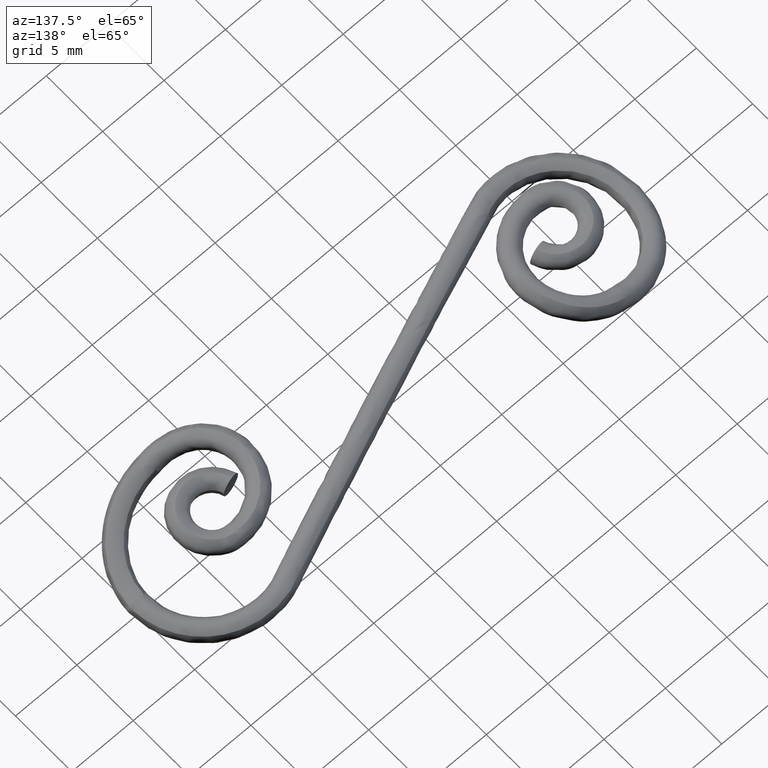
[diagram: clean part render]
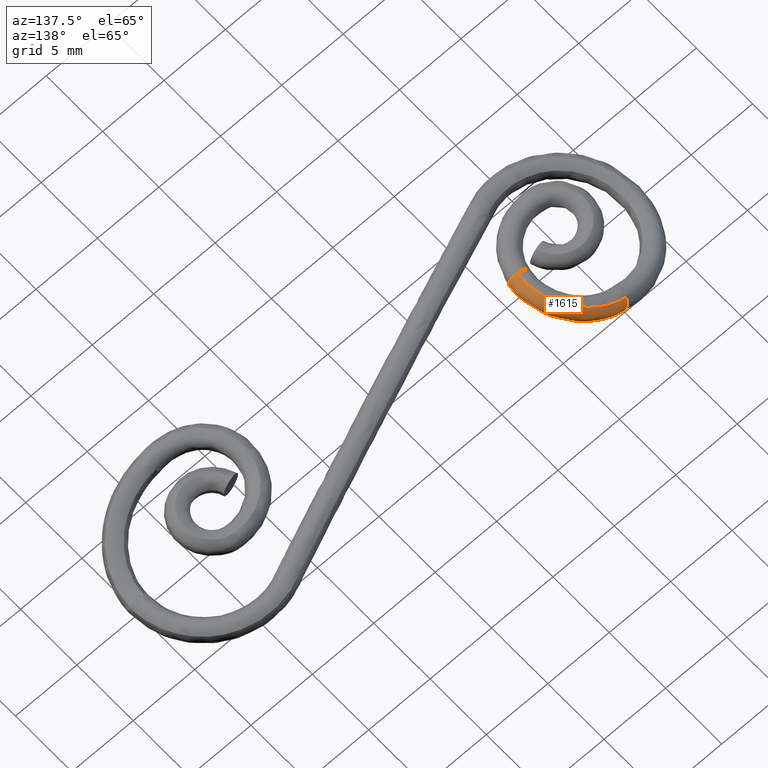
[diagram: same view with one face highlighted and labeled with its STEP entity id]
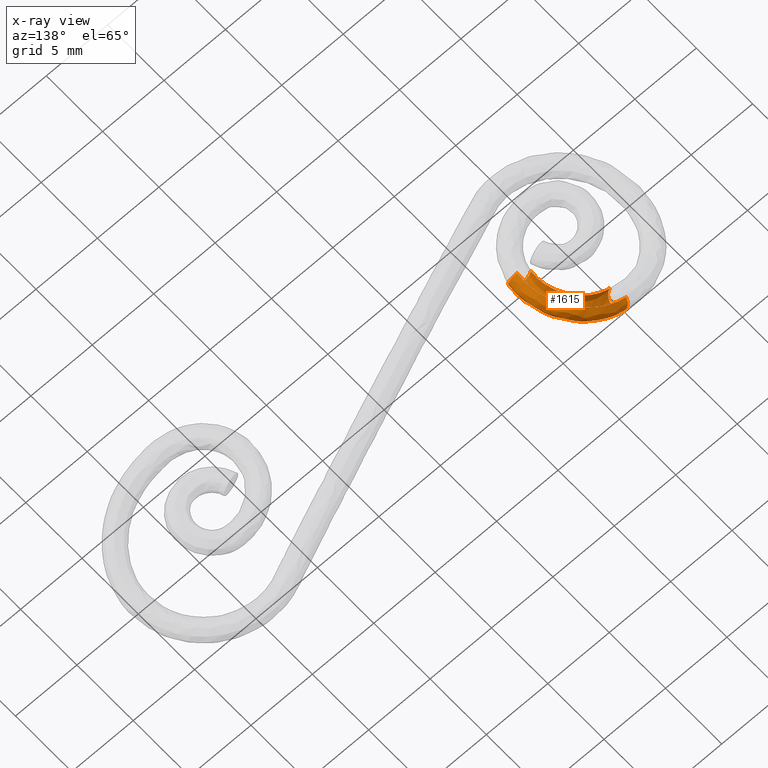
[diagram: x-ray of the same camera — body ghosted, the highlighted face saturated]
A machine part, auxiliary view. The second image highlights one B-rep face of the part: STEP entity #1615.
The next image is the same camera in x-ray: the body ghosted, the highlighted face saturated — about 0% of this face is hidden behind the body in this view.
In plain terms, the highlighted face is a freeform B-spline surface patch.
Its self-contained STEP definition (entity closure, byte-faithful):
#848=CARTESIAN_POINT('',(-10.858889443462781,1.184524392507307,3.281621978987990));
#849=VERTEX_POINT('',#848);
#875=CARTESIAN_POINT('',(-9.405141997174503,0.953093960120456,2.842855684865125));
#876=VERTEX_POINT('',#875);
#877=CARTESIAN_POINT('',(-10.858889443462781,1.184524392507307,3.281621978987990));
#878=CARTESIAN_POINT('',(-10.858918073047910,1.184772808851079,3.271835612351334));
#879=CARTESIAN_POINT('',(-10.858764042023109,1.184990671236889,3.262053713068529));
#880=CARTESIAN_POINT('',(-10.857513822519790,1.185675589073727,3.226170106561495));
#881=CARTESIAN_POINT('',(-10.853089587637079,1.186231982811212,3.174195931299745));
#882=CARTESIAN_POINT('',(-10.843666298514540,1.185939235034702,3.122857200595848));
#883=CARTESIAN_POINT('',(-10.831753643139830,1.185223633576179,3.071834900561029));
#884=CARTESIAN_POINT('',(-10.824502925524200,1.184649475465803,3.046347195926379));
#885=CARTESIAN_POINT('',(-10.799328305052690,1.182314111468509,2.971585419575938));
#886=CARTESIAN_POINT('',(-10.778093691975570,1.179959633035461,2.923973023384732));
#887=CARTESIAN_POINT('',(-10.726838460808770,1.173676456196229,2.833147200509522));
#888=CARTESIAN_POINT('',(-10.696410138463300,1.169689220136361,2.789555053180416));
#889=CARTESIAN_POINT('',(-10.628584842980590,1.160348274327945,2.710592374245749));
#890=CARTESIAN_POINT('',(-10.591034734910391,1.154976318818337,2.674929362307612));
#891=CARTESIAN_POINT('',(-10.529362977773630,1.145887293184716,2.627047291330919));
#892=CARTESIAN_POINT('',(-10.507789872220251,1.142666736953802,2.611951082426464));
#893=CARTESIAN_POINT('',(-10.463639866736861,1.135998088881371,2.584175758835971));
#894=CARTESIAN_POINT('',(-10.441037464261109,1.132546746064896,2.571456463185071));
#895=CARTESIAN_POINT('',(-10.371699952623770,1.121853173091714,2.536688710822137));
#896=CARTESIAN_POINT('',(-10.323404701414301,1.114267853106744,2.517972995699216));
#897=CARTESIAN_POINT('',(-10.222776317618139,1.098188833166522,2.489986580795952));
#898=CARTESIAN_POINT('',(-10.171986586075130,1.089941907602013,2.481138685405341));
#899=CARTESIAN_POINT('',(-10.095087458220769,1.077259865944818,2.475598017909739));
#900=CARTESIAN_POINT('',(-10.069333624464649,1.072979833200762,2.475058082340004));
#901=CARTESIAN_POINT('',(-10.017575749686300,1.064310642650301,2.476685427129468));
#902=CARTESIAN_POINT('',(-9.991471628870185,1.059904446284667,2.478866921800502));
#903=CARTESIAN_POINT('',(-9.914493763793050,1.046813011708527,2.489239595542533));
#904=CARTESIAN_POINT('',(-9.864437282978424,1.038170488784796,2.501187069413605));
#905=CARTESIAN_POINT('',(-9.766745061045205,1.021048692470840,2.534734255309589));
#906=CARTESIAN_POINT('',(-9.718914017381300,1.012531087934882,2.556565790014882));
#907=CARTESIAN_POINT('',(-9.629671181243383,0.996364241351828,2.608335621920891));
#908=CARTESIAN_POINT('',(-9.587739778480744,0.988625383143036,2.638394024373916));
#909=CARTESIAN_POINT('',(-9.529163070391961,0.977570519324578,2.690184612694143));
#910=CARTESIAN_POINT('',(-9.510397537795193,0.973984004212741,2.708583797297709));
#911=CARTESIAN_POINT('',(-9.475222154611570,0.967167916581680,2.746820226762414));
#912=CARTESIAN_POINT('',(-9.444395402422069,0.961103961626174,2.783966437172589));
#913=CARTESIAN_POINT('',(-9.417063826794326,0.955555567795398,2.823810824007240));
#914=CARTESIAN_POINT('',(-9.405141997174503,0.953093960120456,2.842855684865125));
#915=B_SPLINE_CURVE_WITH_KNOTS('',3,(#877,#878,#879,#880,#881,#882,#883,#884,#885,#886,#887,#888,#889,#890,#891,#892,#893,#894,#895,#896,#897,#898,#899,#900,#901,#902,#903,#904,#905,#906,#907,#908,#909,#910,#911,#912,#913,#914),.UNSPECIFIED.,.F.,.U.,(4,2,1,2,2,2,2,2,2,2,2,2,2,2,2,2,2,2,1,4),(0.019622084922274,0.031250000000001,0.062500000000001,0.093750000000002,0.125000000000002,0.187500000000003,0.250000000000004,0.312500000000005,0.343750000000005,0.375000000000006,0.437500000000007,0.500000000000008,0.531250000000007,0.562500000000007,0.625000000000006,0.687500000000005,0.750000000000004,0.781250000000003,0.812500000000003,0.839499367751863),.UNSPECIFIED.);
#916=EDGE_CURVE('',#849,#876,#915,.T.);
#1212=CARTESIAN_POINT('',(-9.282292752054241,0.923164538791007,3.222456528843415));
#1213=VERTEX_POINT('',#1212);
#1214=CARTESIAN_POINT('',(-9.405141997174503,0.953093960120456,2.842855684865125));
#1215=CARTESIAN_POINT('',(-9.403265025987395,0.952706408711693,2.845853960046980));
#1216=CARTESIAN_POINT('',(-9.401406629886514,0.952321595251385,2.848866566014030));
#1217=CARTESIAN_POINT('',(-9.386040027962235,0.949130473291509,2.874146614514067));
#1218=CARTESIAN_POINT('',(-9.373455382284908,0.946456165279197,2.897297165407272));
#1219=CARTESIAN_POINT('',(-9.339270316506088,0.938994596294681,2.968101340764402));
#1220=CARTESIAN_POINT('',(-9.321210720394490,0.934769015625621,3.016906544731462));
#1221=CARTESIAN_POINT('',(-9.301108129679369,0.929536608542071,3.092481102543432));
#1222=CARTESIAN_POINT('',(-9.295582465190423,0.927978498486647,3.118070715789596));
#1223=CARTESIAN_POINT('',(-9.286999859336216,0.925253061926363,3.170086212518231));
#1224=CARTESIAN_POINT('',(-9.283976372625149,0.924092581355617,3.196466555853814));
#1225=CARTESIAN_POINT('',(-9.282292752054241,0.923164538791007,3.222456528843415));
#1226=B_SPLINE_CURVE_WITH_KNOTS('',3,(#1214,#1215,#1216,#1217,#1218,#1219,#1220,#1221,#1222,#1223,#1224,#1225),.UNSPECIFIED.,.F.,.U.,(4,2,2,2,2,4),(0.839499367751863,0.843750000000002,0.875000000000002,0.937500000000001,0.968750000000000,1.0),.UNSPECIFIED.);
#1227=EDGE_CURVE('',#876,#1213,#1226,.T.);
#1229=CARTESIAN_POINT('',(-9.919931967133802,1.009478964911880,4.061339350565421));
#1230=VERTEX_POINT('',#1229);
#1231=CARTESIAN_POINT('',(-9.919931967133802,1.009478964911880,4.061339350565421));
#1232=CARTESIAN_POINT('',(-9.901916370861974,1.006562887507865,4.057654818522732));
#1233=CARTESIAN_POINT('',(-9.883961502024800,1.003671551416158,4.053324254563380));
#1234=CARTESIAN_POINT('',(-9.816277910681853,0.992829357885963,4.034480966274014));
#1235=CARTESIAN_POINT('',(-9.768130321881920,0.985234776740050,4.015865122920581));
#1236=CARTESIAN_POINT('',(-9.675481489139980,0.970864239742364,3.969435825912510));
#1237=CARTESIAN_POINT('',(-9.630756992697895,0.964057845599781,3.941328665998204));
#1238=CARTESIAN_POINT('',(-9.548891766257194,0.951881435243132,3.877809685431281));
#1239=CARTESIAN_POINT('',(-9.511289239580789,0.946439247270018,3.842190218084125));
#1240=CARTESIAN_POINT('',(-9.460137537314589,0.939299875488233,3.782672376479830));
#1241=CARTESIAN_POINT('',(-9.443931059653592,0.937086777896480,3.761767183106053));
#1242=CARTESIAN_POINT('',(-9.413955162867394,0.933094203836097,3.718924197459622));
#1243=CARTESIAN_POINT('',(-9.400083446704933,0.931300184085573,3.696878430171789));
#1244=CARTESIAN_POINT('',(-9.361695793661394,0.926504658658856,3.628935974629136));
#1245=CARTESIAN_POINT('',(-9.340309932998569,0.924076958974850,3.581086509793861));
#1246=CARTESIAN_POINT('',(-9.306639600361899,0.920863190187585,3.481140415174183));
#1247=CARTESIAN_POINT('',(-9.294778739143462,0.920115123441604,3.430403014720727));
#1248=CARTESIAN_POINT('',(-9.284345294193699,0.920266654543591,3.353166301428008));
#1249=CARTESIAN_POINT('',(-9.282104882333165,0.920531320135094,3.327230590023360));
#1250=CARTESIAN_POINT('',(-9.280218974142773,0.921509832305277,3.274960430420375));
#1251=CARTESIAN_POINT('',(-9.280609426323299,0.922235060929190,3.248445642085005));
#1252=CARTESIAN_POINT('',(-9.282292752054241,0.923164538791007,3.222456528843415));
#1253=B_SPLINE_CURVE_WITH_KNOTS('',3,(#1231,#1232,#1233,#1234,#1235,#1236,#1237,#1238,#1239,#1240,#1241,#1242,#1243,#1244,#1245,#1246,#1247,#1248,#1249,#1250,#1251,#1252),.UNSPECIFIED.,.F.,.U.,(4,2,2,2,2,2,2,2,2,2,4),(0.540409852304404,0.562500000000001,0.625000000000000,0.687500000000000,0.750000000000000,0.781250000000000,0.812500000000000,0.875000000000000,0.937500000000000,0.968750000000000,1.0),.UNSPECIFIED.);
#1254=EDGE_CURVE('',#1230,#1213,#1253,.T.);
#1274=CARTESIAN_POINT('',(-9.958544793080064,0.890738641468151,4.055998946626978));
#1275=CARTESIAN_POINT('',(-9.797846451054427,0.865273129946783,4.026918534210102));
#1276=CARTESIAN_POINT('',(-9.645209346525952,0.845001835316450,3.947683299234571));
#1277=CARTESIAN_POINT('',(-9.382483682891108,0.819941695824136,3.681742005270602));
#1278=CARTESIAN_POINT('',(-9.210181675401207,0.821983995771980,3.263843962456360));
#1279=CARTESIAN_POINT('',(-9.377774513303963,0.882370447737130,2.848395331509713));
#1280=CARTESIAN_POINT('',(-9.667768664178103,0.954542346547201,2.555394324632442));
#1281=CARTESIAN_POINT('',(-10.078554057152459,1.038113315608873,2.386278903734240));
#1282=CARTESIAN_POINT('',(-10.704022713005520,1.125657786055711,2.651958730054786));
#1283=CARTESIAN_POINT('',(-10.875890770902760,1.122827303585220,3.079258408714401));
#1284=CARTESIAN_POINT('',(-10.872157618621371,1.105898491180565,3.293868189663840));
#1285=CARTESIAN_POINT('',(-9.954041819160182,0.917166033979001,4.057983402037926));
#1286=CARTESIAN_POINT('',(-9.793377597177207,0.891500206420638,4.028887952957614));
#1287=CARTESIAN_POINT('',(-9.640767653108080,0.871069455262528,3.949640748398986));
#1288=CARTESIAN_POINT('',(-9.378075565970331,0.845812192339931,3.683684657311487));
#1289=CARTESIAN_POINT('',(-9.205770821378648,0.847870564238889,3.265787820734844));
#1290=CARTESIAN_POINT('',(-9.373282749481058,0.908732034209862,2.850374846643855));
#1291=CARTESIAN_POINT('',(-9.663180199974976,0.981471655568924,2.557416455512577));
#1292=CARTESIAN_POINT('',(-10.073853619680300,1.065700012388171,2.388350381104844));
#1293=CARTESIAN_POINT('',(-10.699204979093670,1.153933119792036,2.654081899831019));
#1294=CARTESIAN_POINT('',(-10.871076830159080,1.151080365224416,3.081379906845802));
#1295=CARTESIAN_POINT('',(-10.867366360399050,1.134018384081128,3.295979691634252));
#1296=CARTESIAN_POINT('',(-9.949470029864942,0.944001116246513,4.059998184305393));
#1297=CARTESIAN_POINT('',(-9.788818162483876,0.918262847086099,4.030897290566273));
#1298=CARTESIAN_POINT('',(-9.636218052912492,0.897774430599237,3.951645751955830));
#1299=CARTESIAN_POINT('',(-9.373538123168634,0.872445880557665,3.685684303118874));
#1300=CARTESIAN_POINT('',(-9.201232386795351,0.874510064519644,3.267787903619240));
#1301=CARTESIAN_POINT('',(-9.368715017283719,0.935543318203293,2.852387840952952));
#1302=CARTESIAN_POINT('',(-9.658577452698651,1.008488248663739,2.559444880926584));
#1303=CARTESIAN_POINT('',(-10.069210327315050,1.092954340839216,2.390396674692756));
#1304=CARTESIAN_POINT('',(-10.694519214875870,1.181436484597675,2.656146910715354));
#1305=CARTESIAN_POINT('',(-10.866392440133421,1.178575675771053,3.083444312125241));
#1306=CARTESIAN_POINT('',(-10.862690183926610,1.161465536022627,3.298040477210261));
#1307=CARTESIAN_POINT('',(-9.919178240818987,1.121865904615709,4.073347740787163));
#1308=CARTESIAN_POINT('',(-9.757965937624951,1.099419484396911,4.044493830464176));
#1309=CARTESIAN_POINT('',(-9.604919704666465,1.081551460887705,3.965438897915648));
#1310=CARTESIAN_POINT('',(-9.341688260264130,1.059462293412527,3.699720500952373));
#1311=CARTESIAN_POINT('',(-9.169427469867951,1.061262360097020,3.281804293812443));
#1312=CARTESIAN_POINT('',(-9.338239063399447,1.114489508442104,2.865818558666412));
#1313=CARTESIAN_POINT('',(-9.629689831788840,1.178104894754416,2.572175622130826));
#1314=CARTESIAN_POINT('',(-10.042161906074821,1.251767950210463,2.402316882724698));
#1315=CARTESIAN_POINT('',(-10.669397440924589,1.328933533006046,2.667218047510081));
#1316=CARTESIAN_POINT('',(-10.841208374173091,1.326438730234483,3.094542900936402));
#1317=CARTESIAN_POINT('',(-10.837133554880671,1.311516990632552,3.309303254143396));
#1318=CARTESIAN_POINT('',(-9.899768131531570,1.289793285180985,4.081901753554680));
#1319=CARTESIAN_POINT('',(-9.737458256677281,1.275693647361522,4.053531541795978));
#1320=CARTESIAN_POINT('',(-9.583538322923149,1.264469868884157,3.974861648180017));
#1321=CARTESIAN_POINT('',(-9.319226772014517,1.250594451814870,3.709619252907771));
#1322=CARTESIAN_POINT('',(-9.147053993870280,1.251724827372932,3.291664258870085));
#1323=CARTESIAN_POINT('',(-9.318468249434345,1.285158888231787,2.874531533569135));
#1324=CARTESIAN_POINT('',(-9.613029639360056,1.325118368807235,2.579517749711693));
#1325=CARTESIAN_POINT('',(-10.029103641783060,1.371389343497596,2.408071644731394));
#1326=CARTESIAN_POINT('',(-10.660112375747120,1.419860755791579,2.671309965020702));
#1327=CARTESIAN_POINT('',(-10.831801326108440,1.418293992354317,3.098688576164565));
#1328=CARTESIAN_POINT('',(-10.826996876024550,1.408921139113488,3.313770476819555));
#1329=CARTESIAN_POINT('',(-9.863349514398166,1.927653253992335,4.097951396105397));
#1330=CARTESIAN_POINT('',(-9.699742845947435,1.936000373581781,4.070152679788424));
#1331=CARTESIAN_POINT('',(-9.544790614809505,1.942644770181289,3.991937718438622));
#1332=CARTESIAN_POINT('',(-9.279202864117350,1.950858357989685,3.727257742938702));
#1333=CARTESIAN_POINT('',(-9.107134000036117,1.950187764349543,3.309256954093037));
#1334=CARTESIAN_POINT('',(-9.281623246217746,1.930392868111078,2.890769083975296));
#1335=CARTESIAN_POINT('',(-9.579859805825553,1.906735224629289,2.594135657078843));
#1336=CARTESIAN_POINT('',(-10.000189481728791,1.879341486156578,2.420814081706392));
#1337=CARTESIAN_POINT('',(-10.635656322991171,1.850646501696746,2.682087719252599));
#1338=CARTESIAN_POINT('',(-10.807201224391751,1.851575475442746,3.109529812607795));
#1339=CARTESIAN_POINT('',(-10.801534747975790,1.857125073333022,3.324991607272518));
#1340=CARTESIAN_POINT('',(-9.917908471864166,2.410387062166579,4.073907326500891));
#1341=CARTESIAN_POINT('',(-9.756265526626986,2.435780116478366,4.045243199629519));
#1342=CARTESIAN_POINT('',(-9.602876454654977,2.455993502218179,3.966339355838623));
#1343=CARTESIAN_POINT('',(-9.339221073973523,2.480981361196629,3.700807787104216));
#1344=CARTESIAN_POINT('',(-9.166994555952403,2.478943142751489,3.282876476168294));
#1345=CARTESIAN_POINT('',(-9.336827027448033,2.418726515217615,2.866440841281071));
#1346=CARTESIAN_POINT('',(-9.629498043687674,2.346758422606405,2.572260142926048));
#1347=CARTESIAN_POINT('',(-10.043383202955789,2.263424149884841,2.401778658598219));
#1348=CARTESIAN_POINT('',(-10.672099288709569,2.176129452347935,2.666027346309206));
#1349=CARTESIAN_POINT('',(-10.843862627275190,2.178953653091136,3.093373174657085));
#1350=CARTESIAN_POINT('',(-10.839501675577530,2.195835260612972,3.308259626085031));
#1351=CARTESIAN_POINT('',(-10.225517087021331,3.481196709017963,3.938344564719892));
#1352=CARTESIAN_POINT('',(-10.074496327108120,3.543558283702765,3.904999253032009));
#1353=CARTESIAN_POINT('',(-9.929562749629739,3.593199539519464,3.822369082574031));
#1354=CARTESIAN_POINT('',(-9.676360140323684,3.654566771200442,3.552230989555397));
#1355=CARTESIAN_POINT('',(-9.503281161788452,3.649562548807379,3.134675356984134));
#1356=CARTESIAN_POINT('',(-9.647924546634609,3.501680988254537,2.729340523520844));
#1357=CARTESIAN_POINT('',(-9.910490674719737,3.324939225160773,2.448427014639737));
#1358=CARTESIAN_POINT('',(-10.289516312480821,3.120283456262293,2.293308081220196));
#1359=CARTESIAN_POINT('',(-10.881716037279951,2.905900099754577,2.573649487069404));
#1360=CARTESIAN_POINT('',(-11.054660617506119,2.912834545238183,3.000474743581232));
#1361=CARTESIAN_POINT('',(-11.057361339815980,2.954292523314023,3.212249123421550));
#1362=CARTESIAN_POINT('',(-10.538270529892360,4.047601322788456,3.800514483303137));
#1363=CARTESIAN_POINT('',(-10.397854857393989,4.128743805673482,3.762495521827742));
#1364=CARTESIAN_POINT('',(-10.261363178212230,4.193335140637019,3.676145016530368));
#1365=CARTESIAN_POINT('',(-10.018596574800680,4.273183999658109,3.401407787755047));
#1366=CARTESIAN_POINT('',(-9.844666613680863,4.266673011357975,2.984227182227214));
#1367=CARTESIAN_POINT('',(-9.964161579195221,4.074255572815830,2.589975228146624));
#1368=CARTESIAN_POINT('',(-10.196671371694251,3.844286267244006,2.322307511679626));
#1369=CARTESIAN_POINT('',(-10.540893665861811,3.577996248049250,2.182526371624835));
#1370=CARTESIAN_POINT('',(-11.096635766249070,3.299048745007502,2.478934610488673));
#1371=CARTESIAN_POINT('',(-11.270759578393751,3.308071257683179,2.905240180853848));
#1372=CARTESIAN_POINT('',(-11.280510549066729,3.362014610009269,3.113907524375402));
#1373=CARTESIAN_POINT('',(-11.375364773586920,4.988672372731909,3.431608015948235));
#1374=CARTESIAN_POINT('',(-11.261342261929469,5.099486676950127,3.381957618942845));
#1375=CARTESIAN_POINT('',(-11.145860171051220,5.187697543033616,3.286348212321376));
#1376=CARTESIAN_POINT('',(-10.929065987082421,5.296745429643128,3.000164968264228));
#1377=CARTESIAN_POINT('',(-10.753018262738159,5.287853979917666,2.583917658545825));
#1378=CARTESIAN_POINT('',(-10.809925808382211,5.025074706546598,2.217247908188639));
#1379=CARTESIAN_POINT('',(-10.967633694507249,4.711011650727668,1.982545305554075));
#1380=CARTESIAN_POINT('',(-11.225240051964770,4.347346166551209,1.880935708869800));
#1381=CARTESIAN_POINT('',(-11.690249061350610,3.966394207845490,2.217329916249500));
#1382=CARTESIAN_POINT('',(-11.867307557054710,3.978715574005619,2.642342174956621));
#1383=CARTESIAN_POINT('',(-11.894604611389999,4.052384441622471,2.843276979652748));
#1384=CARTESIAN_POINT('',(-11.896543635785720,5.359914362235056,3.201925092714810));
#1385=CARTESIAN_POINT('',(-11.798144568487320,5.481614755174081,3.145389461806693));
#1386=CARTESIAN_POINT('',(-11.695099118794090,5.578491232726047,3.044299241764312));
#1387=CARTESIAN_POINT('',(-11.493679343116380,5.698251771413973,2.751340513712820));
#1388=CARTESIAN_POINT('',(-11.316378046769721,5.688487012097807,2.335645651728861));
#1389=CARTESIAN_POINT('',(-11.336236983783399,5.399893220898683,1.985303180448507));
#1390=CARTESIAN_POINT('',(-11.449665879964700,5.054977629314393,1.770114277592886));
#1391=CARTESIAN_POINT('',(-11.655999916210350,4.655586762257552,1.691100333708857));
#1392=CARTESIAN_POINT('',(-12.067299413010510,4.237211080010031,2.051164261314396));
#1393=CARTESIAN_POINT('',(-12.246095056150949,4.250742697238851,2.475410961151289));
#1394=CARTESIAN_POINT('',(-12.283778501528159,4.331648499299305,2.671768495298770));
#1395=CARTESIAN_POINT('',(-12.902812362802200,5.781020016604730,2.758463625754682));
#1396=CARTESIAN_POINT('',(-12.833242534579240,5.914783378672842,2.689222982449310));
#1397=CARTESIAN_POINT('',(-12.753145865667999,6.021262306002551,2.578019261194555));
#1398=CARTESIAN_POINT('',(-12.580095820452280,6.152893672494963,2.272558025661106));
#1399=CARTESIAN_POINT('',(-12.400481410902589,6.142161271509910,1.857882549997972));
#1400=CARTESIAN_POINT('',(-12.351976270966240,5.824962282185658,1.537668048550368));
#1401=CARTESIAN_POINT('',(-12.383699180664980,5.445858800385194,1.358486879665072));
#1402=CARTESIAN_POINT('',(-12.495422738474470,5.006880377880369,1.321167664465321));
#1403=CARTESIAN_POINT('',(-12.807614469294389,4.547035112034960,1.724908270188770));
#1404=CARTESIAN_POINT('',(-12.989615544484231,4.561907736731989,2.147742339818288));
#1405=CARTESIAN_POINT('',(-13.046464503967600,4.650832803811365,2.335653654013096));
#1406=CARTESIAN_POINT('',(-13.363213261369051,5.888146251753180,2.555565480967921));
#1407=CARTESIAN_POINT('',(-13.306484741021279,6.024853127764312,2.480665688098286));
#1408=CARTESIAN_POINT('',(-13.236610069754541,6.133675177226401,2.364957144275829));
#1409=CARTESIAN_POINT('',(-13.076196663093970,6.268203195646513,2.053926956711559));
#1410=CARTESIAN_POINT('',(-12.895551945735180,6.257234718563397,1.639705536510397));
#1411=CARTESIAN_POINT('',(-12.816595648683590,5.933055753080673,1.332910824869110));
#1412=CARTESIAN_POINT('',(-12.811924557146330,5.545610038581161,1.169768450337015));
#1413=CARTESIAN_POINT('',(-12.881506106928329,5.096971787476505,1.151021169451716));
#1414=CARTESIAN_POINT('',(-13.149552604027519,4.627007413418812,1.574216528740507));
#1415=CARTESIAN_POINT('',(-13.332981449164730,4.642207219104247,1.996421381802352));
#1416=CARTESIAN_POINT('',(-13.398367229167500,4.733089063693010,2.180570529043689));
#1417=CARTESIAN_POINT('',(-13.984157496833570,5.925410231738488,2.281916072845871));
#1418=CARTESIAN_POINT('',(-13.944640030715110,6.063160027199936,2.199431388235519));
#1419=CARTESIAN_POINT('',(-13.888465785178219,6.172812282447413,2.077685082601508));
#1420=CARTESIAN_POINT('',(-13.744989126421951,6.308366666412229,1.759190889777416));
#1421=CARTESIAN_POINT('',(-13.562963516534751,6.297314633185609,1.345578027320568));
#1422=CARTESIAN_POINT('',(-13.443193910519600,5.970662686870479,1.056769693848952));
#1423=CARTESIAN_POINT('',(-13.389744381401201,5.580261306143263,0.915123920478137));
#1424=CARTESIAN_POINT('',(-13.402843503096889,5.128200526778832,0.921268380480975));
#1425=CARTESIAN_POINT('',(-13.611722654887121,4.654650806301566,1.370538720579744));
#1426=CARTESIAN_POINT('',(-13.797065105977969,4.669966445435194,1.791900249705829));
#1427=CARTESIAN_POINT('',(-13.873892676901241,4.761541548761905,1.971007012890143));
#1428=CARTESIAN_POINT('',(-14.146984881396650,5.925769756517719,2.210158232339668));
#1429=CARTESIAN_POINT('',(-14.113946110107150,6.063425463284356,2.124818394393327));
#1430=CARTESIAN_POINT('',(-14.062929066602660,6.173002827619296,2.000799315773990));
#1431=CARTESIAN_POINT('',(-13.925827848142379,6.308464647931199,1.679495473767383));
#1432=CARTESIAN_POINT('',(-13.743282436719580,6.297420208821145,1.266111687247554));
#1433=CARTESIAN_POINT('',(-13.608149627853781,5.970991431050291,0.984073899546149));
#1434=CARTESIAN_POINT('',(-13.536338610621730,5.580856750610648,0.850520012801477));
#1435=CARTESIAN_POINT('',(-13.528176258201160,5.129104775496062,0.866034379915599));
#1436=CARTESIAN_POINT('',(-13.714783259299470,4.655878490880528,1.325120031127060));
#1437=CARTESIAN_POINT('',(-13.900846039241490,4.671183622575533,1.746164112159289));
#1438=CARTESIAN_POINT('',(-13.981980600513980,4.762696151270368,1.923372789666142));
#1439=CARTESIAN_POINT('',(-14.325145311833079,5.916518369731879,2.131643136208290));
#1440=CARTESIAN_POINT('',(-14.294690147730121,6.054040081459144,2.045164705555824));
#1441=CARTESIAN_POINT('',(-14.245729719805171,6.163510784818204,1.920239278823553));
#1442=CARTESIAN_POINT('',(-14.111170932476529,6.298840755816618,1.597814990350759));
#1443=CARTESIAN_POINT('',(-13.928418232491490,6.287807085469857,1.184522555661060));
#1444=CARTESIAN_POINT('',(-13.787158807364650,5.961696076563097,0.905184760676958));
#1445=CARTESIAN_POINT('',(-13.708025502134641,5.571941172088656,0.774857797804504));
#1446=CARTESIAN_POINT('',(-13.691384390260980,5.120628946893874,0.794108744426971));
#1447=CARTESIAN_POINT('',(-13.869109588535469,4.647863296984405,1.257108595894699));
#1448=CARTESIAN_POINT('',(-14.055459624338591,4.663153512085905,1.678026083600562));
#1449=CARTESIAN_POINT('',(-14.138311749021881,4.754576951801291,1.854477832894002));
#1450=CARTESIAN_POINT('',(-14.352646049828889,5.915088748406245,2.119523592703964));
#1451=CARTESIAN_POINT('',(-14.322081972759941,6.052616127212960,2.033093159869951));
#1452=CARTESIAN_POINT('',(-14.273034847411081,6.162091341741848,1.908205940592366));
#1453=CARTESIAN_POINT('',(-14.138368882933939,6.297426889643354,1.585828884965250));
#1454=CARTESIAN_POINT('',(-13.955624921322970,6.286392764866184,1.172532599284190));
#1455=CARTESIAN_POINT('',(-13.814623766138750,5.960268317666335,0.893080985034378));
#1456=CARTESIAN_POINT('',(-13.735799134847120,5.570497352156611,0.762617989913412));
#1457=CARTESIAN_POINT('',(-13.719515448404289,5.119166529168089,0.781711419560913));
#1458=CARTESIAN_POINT('',(-13.897615062514539,4.646381397141036,1.244546266401822));
#1459=CARTESIAN_POINT('',(-14.083952988889919,4.661672242073090,1.665469090718502));
#1460=CARTESIAN_POINT('',(-14.166732708994941,4.753099449081702,1.841952748626052));
#1461=CARTESIAN_POINT('',(-14.379930674891080,5.913669831344304,2.107499289920138));
#1462=CARTESIAN_POINT('',(-14.349189890063970,6.051206386458004,2.021146731991257));
#1463=CARTESIAN_POINT('',(-14.300002100948269,6.160688905475790,1.896321503073417));
#1464=CARTESIAN_POINT('',(-14.165162244995910,6.296033483100327,1.574021081218794));
#1465=CARTESIAN_POINT('',(-13.982432461069910,6.284998621490486,1.160718547448336));
#1466=CARTESIAN_POINT('',(-13.841850340448209,5.958852413440067,0.881082265150309));
#1467=CARTESIAN_POINT('',(-13.763526522580319,5.569055440516725,0.750398562131332));
#1468=CARTESIAN_POINT('',(-13.747822747289529,5.117694502783505,0.769236425603219));
#1469=CARTESIAN_POINT('',(-13.926529838978160,4.644877825116926,1.231803557776267));
#1470=CARTESIAN_POINT('',(-14.112848118244299,4.660169690919532,1.652735040551304));
#1471=CARTESIAN_POINT('',(-14.195510364291620,4.751602998603215,1.829270469140542));
#1472=B_SPLINE_SURFACE_WITH_KNOTS('',3,3,((#1274,#1285,#1296,#1307,#1318,#1329,#1340,#1351,#1362,#1373,#1384,#1395,#1406,#1417,#1428,#1439,#1450,#1461),(#1275,#1286,#1297,#1308,#1319,#1330,#1341,#1352,#1363,#1374,#1385,#1396,#1407,#1418,#1429,#1440,#1451,#1462),(#1276,#1287,#1298,#1309,#1320,#1331,#1342,#1353,#1364,#1375,#1386,#1397,#1408,#1419,#1430,#1441,#1452,#1463),(#1277,#1288,#1299,#1310,#1321,#1332,#1343,#1354,#1365,#1376,#1387,#1398,#1409,#1420,#1431,#1442,#1453,#1464),(#1278,#1289,#1300,#1311,#1322,#1333,#1344,#1355,#1366,#1377,#1388,#1399,#1410,#1421,#1432,#1443,#1454,#1465),(#1279,#1290,#1301,#1312,#1323,#1334,#1345,#1356,#1367,#1378,#1389,#1400,#1411,#1422,#1433,#1444,#1455,#1466),(#1280,#1291,#1302,#1313,#1324,#1335,#1346,#1357,#1368,#1379,#1390,#1401,#1412,#1423,#1434,#1445,#1456,#1467),(#1281,#1292,#1303,#1314,#1325,#1336,#1347,#1358,#1369,#1380,#1391,#1402,#1413,#1424,#1435,#1446,#1457,#1468),(#1282,#1293,#1304,#1315,#1326,#1337,#1348,#1359,#1370,#1381,#1392,#1403,#1414,#1425,#1436,#1447,#1458,#1469),(#1283,#1294,#1305,#1316,#1327,#1338,#1349,#1360,#1371,#1382,#1393,#1404,#1415,#1426,#1437,#1448,#1459,#1470),(#1284,#1295,#1306,#1317,#1328,#1339,#1350,#1361,#1372,#1383,#1394,#1405,#1416,#1427,#1438,#1449,#1460,#1471)),.UNSPECIFIED.,.F.,.F.,.U.,(4,2,1,2,1,1,4),(4,2,2,2,2,2,2,2,4),(0.0,0.496466892101369,1.125076314057375,1.753685736013382,2.382295157969387,3.010904579925394,3.657621320063630),(0.0,0.108115932083595,0.668568080312824,2.349924525000511,4.591733117917426,6.833541710834342,8.514898155522030,9.075350303751257,9.185202053812787),.UNSPECIFIED.);
#1473=CARTESIAN_POINT('',(-14.269263970683999,5.934494702005511,2.144594473390671));
#1474=VERTEX_POINT('',#1473);
#1475=CARTESIAN_POINT('',(-13.928598595899720,6.259586438346415,1.378643593207931));
#1476=VERTEX_POINT('',#1475);
#1477=CARTESIAN_POINT('',(-14.269263970683999,5.934494702005511,2.144594473390671));
#1478=CARTESIAN_POINT('',(-14.264091109856761,5.952455169995618,2.133230479585910));
#1479=CARTESIAN_POINT('',(-14.258624204971690,5.969911374090390,2.121191453694979));
#1480=CARTESIAN_POINT('',(-14.246002984791939,6.007064301821917,2.093336553642475));
#1481=CARTESIAN_POINT('',(-14.238692762279969,6.026629751002153,2.077165174313978));
#1482=CARTESIAN_POINT('',(-14.215714122823170,6.082551778641173,2.026222407330366));
#1483=CARTESIAN_POINT('',(-14.199200081888851,6.115775042989969,1.989473600208629));
#1484=CARTESIAN_POINT('',(-14.172660877588781,6.159592864993099,1.930216421077640));
#1485=CARTESIAN_POINT('',(-14.163517079060989,6.173186767485138,1.909768720147324));
#1486=CARTESIAN_POINT('',(-14.144604349365210,6.198245227439879,1.867410111774847));
#1487=CARTESIAN_POINT('',(-14.134895280554449,6.209614804895707,1.845632932964177));
#1488=CARTESIAN_POINT('',(-14.105448720166130,6.239720318007175,1.779489544967790));
#1489=CARTESIAN_POINT('',(-14.085219827277600,6.254672974025383,1.733925793267950));
#1490=CARTESIAN_POINT('',(-14.054021985111261,6.269770318589422,1.663475986155428));
#1491=CARTESIAN_POINT('',(-14.043420613571319,6.273581760182610,1.639506679707017));
#1492=CARTESIAN_POINT('',(-14.022259080918710,6.278607628719516,1.591602651523247));
#1493=CARTESIAN_POINT('',(-14.011707434281989,6.279838316967643,1.567687617926948));
#1494=CARTESIAN_POINT('',(-13.980137213890581,6.279803597373387,1.496049961865782));
#1495=CARTESIAN_POINT('',(-13.959202327400421,6.274859451662409,1.448433372524926));
#1496=CARTESIAN_POINT('',(-13.935104083330170,6.263141407168343,1.393485862970561));
#1497=CARTESIAN_POINT('',(-13.931841913359341,6.261424618313787,1.386044698698182));
#1498=CARTESIAN_POINT('',(-13.928598595899720,6.259586438346415,1.378643593207931));
#1499=B_SPLINE_CURVE_WITH_KNOTS('',3,(#1477,#1478,#1479,#1480,#1481,#1482,#1483,#1484,#1485,#1486,#1487,#1488,#1489,#1490,#1491,#1492,#1493,#1494,#1495,#1496,#1497,#1498),.UNSPECIFIED.,.F.,.U.,(4,2,2,2,2,2,2,2,2,2,4),(0.192519801466438,0.218749999999991,0.249999999999990,0.312499999999988,0.343749999999988,0.374999999999987,0.437499999999988,0.468749999999988,0.499999999999988,0.562499999999989,0.572349457689804),.UNSPECIFIED.);
#1500=EDGE_CURVE('',#1474,#1476,#1499,.T.);
#1501=ORIENTED_EDGE('',*,*,#1500,.F.);
#1502=CARTESIAN_POINT('',(-9.919931967133802,1.009478964911880,4.061339350565421));
#1503=CARTESIAN_POINT('',(-9.897670039269150,1.148752192780762,4.071150165236495));
#1504=CARTESIAN_POINT('',(-9.880622328556809,1.302161048231442,4.078663081907880));
#1505=CARTESIAN_POINT('',(-9.863313543783400,1.608461551787912,4.086291065145405));
#1506=CARTESIAN_POINT('',(-9.863256715260519,1.769003014976258,4.086316121532290));
#1507=CARTESIAN_POINT('',(-9.889989869075333,2.248988181598430,4.074534889878216));
#1508=CARTESIAN_POINT('',(-9.943844539275862,2.566796667335099,4.050801227155829));
#1509=CARTESIAN_POINT('',(-10.208478346497261,3.488146081917572,3.934177504327333));
#1510=CARTESIAN_POINT('',(-10.522419364267639,4.056646750516916,3.795824127976553));
#1511=CARTESIAN_POINT('',(-11.362455750820381,5.001025475311284,3.425621199917295));
#1512=CARTESIAN_POINT('',(-11.885378189610851,5.373484714620597,3.195169954285324));
#1513=CARTESIAN_POINT('',(-12.750632711070651,5.735553577811504,2.813853381292024));
#1514=CARTESIAN_POINT('',(-13.052066908758629,5.823613553627553,2.681011708832209));
#1515=CARTESIAN_POINT('',(-13.512975588800311,5.903858489286016,2.477889828115249));
#1516=CARTESIAN_POINT('',(-13.668076204785740,5.921994234362097,2.409537179332106));
#1517=CARTESIAN_POINT('',(-13.971597659269460,5.940328543263516,2.275775650109928));
#1518=CARTESIAN_POINT('',(-14.126367352251300,5.941060011170704,2.207568837371555));
#1519=CARTESIAN_POINT('',(-14.269263970683999,5.934494702005511,2.144594473390671));
#1520=B_SPLINE_CURVE_WITH_KNOTS('',3,(#1502,#1503,#1504,#1505,#1506,#1507,#1508,#1509,#1510,#1511,#1512,#1513,#1514,#1515,#1516,#1517,#1518,#1519),.UNSPECIFIED.,.F.,.U.,(4,2,2,2,2,2,2,2,4),(0.005452004683570,0.062500000000000,0.125000000000000,0.250000000000000,0.500000000000000,0.750000000000000,0.875000000000000,0.937500000000000,0.996797822886746),.UNSPECIFIED.);
#1521=EDGE_CURVE('',#1230,#1474,#1520,.T.);
#1522=ORIENTED_EDGE('',*,*,#1521,.F.);
#1523=ORIENTED_EDGE('',*,*,#1254,.T.);
#1524=ORIENTED_EDGE('',*,*,#1227,.F.);
#1525=ORIENTED_EDGE('',*,*,#916,.F.);
#1526=CARTESIAN_POINT('',(-14.142493072920340,4.746693360934946,1.834541854444983));
#1527=VERTEX_POINT('',#1526);
#1528=CARTESIAN_POINT('',(-10.858889443462781,1.184524392507307,3.281621978987990));
#1529=CARTESIAN_POINT('',(-10.858744338841600,1.185376330702359,3.281685926447020));
#1530=CARTESIAN_POINT('',(-10.858599881833189,1.186224476300508,3.281749588503763));
#1531=CARTESIAN_POINT('',(-10.837057258030850,1.312708450412251,3.291243400911955));
#1532=CARTESIAN_POINT('',(-10.826956834313060,1.409637194336268,3.295694648457443));
#1533=CARTESIAN_POINT('',(-10.814321745418789,1.633237242346795,3.301262923583357));
#1534=CARTESIAN_POINT('',(-10.814282315706970,1.745242495829411,3.301280303430459));
#1535=CARTESIAN_POINT('',(-10.832946756390299,2.080346656634499,3.293054916181401));
#1536=CARTESIAN_POINT('',(-10.870504696828140,2.302576949384153,3.276503182742385));
#1537=CARTESIAN_POINT('',(-11.056742473964050,2.950978655861861,3.194428433774694));
#1538=CARTESIAN_POINT('',(-11.279330582137140,3.357706339074410,3.096334130063533));
#1539=CARTESIAN_POINT('',(-11.892023595853519,4.046500914435415,2.826321065038036));
#1540=CARTESIAN_POINT('',(-12.280368832815149,4.325191074707147,2.655177787485224));
#1541=CARTESIAN_POINT('',(-12.932782326673520,4.598194855890677,2.367659941994530));
#1542=CARTESIAN_POINT('',(-13.161382820928250,4.665095350810253,2.266915977094250));
#1543=CARTESIAN_POINT('',(-13.511917955761669,4.726123639350442,2.112435560469872));
#1544=CARTESIAN_POINT('',(-13.630032631090220,4.739940527100486,2.060382563468878));
#1545=CARTESIAN_POINT('',(-13.867365077350410,4.754276386593337,1.955790436160020));
#1546=CARTESIAN_POINT('',(-13.975100424270520,4.755387845951711,1.908311596519233));
#1547=CARTESIAN_POINT('',(-14.117445795591600,4.747995020286171,1.845580159908875));
#1548=CARTESIAN_POINT('',(-14.129790790315260,4.747353570712935,1.840139735350093));
#1549=CARTESIAN_POINT('',(-14.142493072920340,4.746693360934946,1.834541854444983));
#1550=B_SPLINE_CURVE_WITH_KNOTS('',3,(#1528,#1529,#1530,#1531,#1532,#1533,#1534,#1535,#1536,#1537,#1538,#1539,#1540,#1541,#1542,#1543,#1544,#1545,#1546,#1547,#1548,#1549),.UNSPECIFIED.,.F.,.U.,(4,2,2,2,2,2,2,2,2,2,4),(-0.000419973589446,0.0,0.062500000000000,0.125000000000000,0.250000000000000,0.500000000000000,0.750000000000000,0.875000000000000,0.937500000000000,1.0,1.005622755108947),.UNSPECIFIED.);
#1551=EDGE_CURVE('',#849,#1527,#1550,.T.);
#1552=ORIENTED_EDGE('',*,*,#1551,.T.);
#1553=CARTESIAN_POINT('',(-13.684886397861019,5.480096439542750,0.809667520447031));
#1554=VERTEX_POINT('',#1553);
#1555=CARTESIAN_POINT('',(-14.142493072920340,4.746693360934946,1.834541854444983));
#1556=CARTESIAN_POINT('',(-14.140122908347950,4.744073783787826,1.829115493977513));
#1557=CARTESIAN_POINT('',(-14.137742870561130,4.741533680731606,1.823668191369478));
#1558=CARTESIAN_POINT('',(-14.115992860144170,4.719142497846685,1.773903043235257));
#1559=CARTESIAN_POINT('',(-14.095968174503859,4.704274780176506,1.728191206159623));
#1560=CARTESIAN_POINT('',(-14.064981704984220,4.689234853848768,1.657602559314500));
#1561=CARTESIAN_POINT('',(-14.054435353843269,4.685433065832949,1.633601686901330));
#1562=CARTESIAN_POINT('',(-14.033346428279710,4.680415542833808,1.585656056298915));
#1563=CARTESIAN_POINT('',(-14.022811500883950,4.679183587338521,1.561728351946047));
#1564=CARTESIAN_POINT('',(-13.991234575878281,4.679217818503760,1.490077027202541));
#1565=CARTESIAN_POINT('',(-13.970220072042160,4.684165415283490,1.442483474855982));
#1566=CARTESIAN_POINT('',(-13.928269255623130,4.704530858895309,1.347666296485907));
#1567=CARTESIAN_POINT('',(-13.907987263900120,4.719659075242089,1.301922080589898));
#1568=CARTESIAN_POINT('',(-13.878722983373370,4.749722245624040,1.236070543387170));
#1569=CARTESIAN_POINT('',(-13.869154332616080,4.760971201209329,1.214564915349503));
#1570=CARTESIAN_POINT('',(-13.850386772534801,4.785908578290987,1.172437511727386));
#1571=CARTESIAN_POINT('',(-13.841145245696520,4.799677821647718,1.151720517865750));
#1572=CARTESIAN_POINT('',(-13.814521443559389,4.843810335943805,1.092119301747772));
#1573=CARTESIAN_POINT('',(-13.798091760343640,4.877083743168644,1.055450160124035));
#1574=CARTESIAN_POINT('',(-13.767793794861360,4.951107471433958,0.988061617985057));
#1575=CARTESIAN_POINT('',(-13.753864474529591,4.992230099669225,0.957210563278032));
#1576=CARTESIAN_POINT('',(-13.729816350826880,5.078951709488403,0.904237494829762));
#1577=CARTESIAN_POINT('',(-13.719539438734930,5.124852627324947,0.881762264317801));
#1578=CARTESIAN_POINT('',(-13.706936516620850,5.197792941164170,0.854506609246891));
#1579=CARTESIAN_POINT('',(-13.703207495071350,5.222814690017245,0.846505370769897));
#1580=CARTESIAN_POINT('',(-13.696832446752710,5.273057681189590,0.832964079948837));
#1581=CARTESIAN_POINT('',(-13.691486902295850,5.323782031129640,0.821767783156047));
#1582=CARTESIAN_POINT('',(-13.688124091472289,5.375433438134023,0.815087753024954));
#1583=CARTESIAN_POINT('',(-13.685752077422160,5.427548107823171,0.810664561833955));
#1584=CARTESIAN_POINT('',(-13.685063513590510,5.454023928942183,0.809589473320865));
#1585=CARTESIAN_POINT('',(-13.684886397861019,5.480096439542750,0.809667520447031));
#1586=B_SPLINE_CURVE_WITH_KNOTS('',3,(#1555,#1556,#1557,#1558,#1559,#1560,#1561,#1562,#1563,#1564,#1565,#1566,#1567,#1568,#1569,#1570,#1571,#1572,#1573,#1574,#1575,#1576,#1577,#1578,#1579,#1580,#1581,#1582,#1583,#1584,#1585),.UNSPECIFIED.,.F.,.U.,(4,2,2,2,2,2,2,2,2,2,2,2,2,1,2,4),(0.367292969426987,0.374999999999995,0.437499999999996,0.468749999999996,0.499999999999997,0.562499999999997,0.624999999999997,0.656249999999997,0.687499999999998,0.749999999999998,0.812499999999998,0.874999999999999,0.906249999999999,0.937499999999999,0.968750000000000,1.0),.UNSPECIFIED.);
#1587=EDGE_CURVE('',#1527,#1554,#1586,.T.);
#1588=ORIENTED_EDGE('',*,*,#1587,.T.);
#1589=CARTESIAN_POINT('',(-13.928598595899720,6.259586438346415,1.378643593207931));
#1590=CARTESIAN_POINT('',(-13.911261326367651,6.249760466587162,1.339080784649384));
#1591=CARTESIAN_POINT('',(-13.894462762066009,6.236465785700601,1.300662641129420));
#1592=CARTESIAN_POINT('',(-13.868638087553551,6.209785613703997,1.241465377004169));
#1593=CARTESIAN_POINT('',(-13.859224183494939,6.198608579006805,1.219854405904959));
#1594=CARTESIAN_POINT('',(-13.840805820514200,6.173774063862575,1.177508975803526));
#1595=CARTESIAN_POINT('',(-13.831759390674771,6.160038608081128,1.156677575868385));
#1596=CARTESIAN_POINT('',(-13.805776950014920,6.115987658458211,1.096751317737203));
#1597=CARTESIAN_POINT('',(-13.789842772759540,6.082732752961890,1.059870399778460));
#1598=CARTESIAN_POINT('',(-13.760636578000550,6.008749898792952,0.992011907480383));
#1599=CARTESIAN_POINT('',(-13.747303978046460,5.967638972284351,0.960889083246049));
#1600=CARTESIAN_POINT('',(-13.724463665645590,5.880955560747527,0.907262011152913));
#1601=CARTESIAN_POINT('',(-13.714803071828999,5.835097879189753,0.884404495992820));
#1602=CARTESIAN_POINT('',(-13.703137423652761,5.762267972893997,0.856476949123702));
#1603=CARTESIAN_POINT('',(-13.699732123913019,5.737269709692452,0.848254780765362));
#1604=CARTESIAN_POINT('',(-13.694020922826210,5.687063991419951,0.834311290922794));
#1605=CARTESIAN_POINT('',(-13.689355842170141,5.636368858222612,0.822742099790446));
#1606=CARTESIAN_POINT('',(-13.686696989792450,5.584734873165475,0.815727780708909));
#1607=CARTESIAN_POINT('',(-13.685036132730669,5.532633806166471,0.810979568891224));
#1608=CARTESIAN_POINT('',(-13.684708911485741,5.506161767619406,0.809745744651781));
#1609=CARTESIAN_POINT('',(-13.684886397861019,5.480096439542750,0.809667520447031));
#1610=B_SPLINE_CURVE_WITH_KNOTS('',3,(#1589,#1590,#1591,#1592,#1593,#1594,#1595,#1596,#1597,#1598,#1599,#1600,#1601,#1602,#1603,#1604,#1605,#1606,#1607,#1608,#1609),.UNSPECIFIED.,.F.,.U.,(4,2,2,2,2,2,2,2,1,2,4),(0.572349457689804,0.624999999999990,0.656249999999990,0.687499999999990,0.749999999999992,0.812499999999994,0.874999999999995,0.906249999999996,0.937499999999998,0.968749999999999,1.0),.UNSPECIFIED.);
#1611=EDGE_CURVE('',#1476,#1554,#1610,.T.);
#1612=ORIENTED_EDGE('',*,*,#1611,.F.);
#1613=EDGE_LOOP('',(#1501,#1522,#1523,#1524,#1525,#1552,#1588,#1612));
#1614=FACE_OUTER_BOUND('',#1613,.T.);
#1615=ADVANCED_FACE('',(#1614),#1472,.T.);